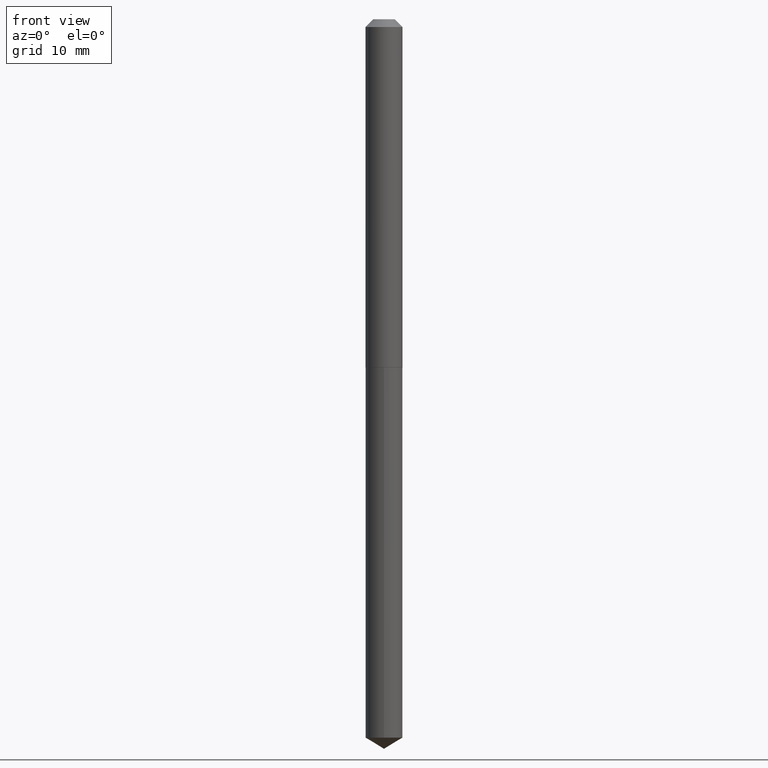
[diagram: clean part render]
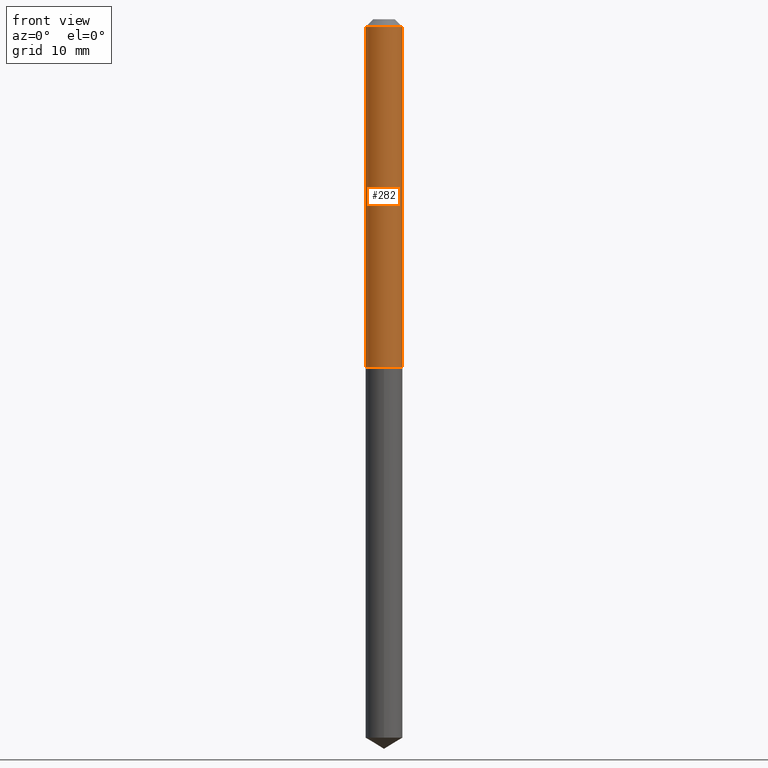
[diagram: same view with one face highlighted and labeled with its STEP entity id]
A machine part, front view. The second image highlights one B-rep face of the part: STEP entity #282.
In plain terms, the highlighted cylindrical surface (edge-blend (fillet) strip) has radius 1.8999 mm, axis along (-0, 0, 1).
Its self-contained STEP definition (entity closure, byte-faithful):
#2 = VECTOR ( 'NONE', #390, 39.37007874015748143 ) ;
#12 = ORIENTED_EDGE ( 'NONE', *, *, #45, .T. ) ;
#24 = EDGE_CURVE ( 'NONE', #134, #37, #386, .T. ) ;
#27 = CARTESIAN_POINT ( 'NONE',  ( 7.642090019328601786E-31, -1.091087918388490144E-16, -0.03125000000000020123 ) ) ;
#31 = CARTESIAN_POINT ( 'NONE',  ( 0.000000000000000000, 0.000000000000000000, 0.000000000000000000 ) ) ;
#37 = VERTEX_POINT ( 'NONE', #353 ) ;
#40 = EDGE_CURVE ( 'NONE', #209, #134, #263, .T. ) ;
#45 = EDGE_CURVE ( 'NONE', #344, #37, #171, .T. ) ;
#74 = ORIENTED_EDGE ( 'NONE', *, *, #125, .T. ) ;
#107 = DIRECTION ( 'NONE',  ( 1.000000000000000000, -6.982962677686271444E-15, 0.000000000000000000 ) ) ;
#113 = CARTESIAN_POINT ( 'NONE',  ( 3.445665547914856505E-29, -4.919497206429991117E-15, -1.408999999999999586 ) ) ;
#121 = DIRECTION ( 'NONE',  ( -2.445468806185136597E-29, 3.491481338843145583E-15, 1.000000000000000000 ) ) ;
#125 = EDGE_CURVE ( 'NONE', #209, #344, #347, .T. ) ;
#134 = VERTEX_POINT ( 'NONE', #323 ) ;
#171 = LINE ( 'NONE', #203, #2 ) ;
#183 = AXIS2_PLACEMENT_3D ( 'NONE', #27, #260, #388 ) ;
#195 = EDGE_LOOP ( 'NONE', ( #281, #74, #12, #310 ) ) ;
#203 = CARTESIAN_POINT ( 'NONE',  ( 0.07480000000000010252, -5.223256082909333921E-16, 3.647380228295364368E-30 ) ) ;
#209 = VERTEX_POINT ( 'NONE', #359 ) ;
#233 = CARTESIAN_POINT ( 'NONE',  ( -0.07480000000000010252, 5.314859663485556675E-16, -3.679363447510674285E-30 ) ) ;
#246 = DIRECTION ( 'NONE',  ( 1.000000000000000000, -6.982962677686265922E-15, 4.876176775795935232E-29 ) ) ;
#260 = DIRECTION ( 'NONE',  ( -2.445468806185136597E-29, 3.491481338843145583E-15, 1.000000000000000000 ) ) ;
#261 = AXIS2_PLACEMENT_3D ( 'NONE', #31, #121, #246 ) ;
#263 = LINE ( 'NONE', #233, #294 ) ;
#266 = CARTESIAN_POINT ( 'NONE',  ( 0.07480000000000018578, -5.441822814720925495E-15, -1.408999999999999586 ) ) ;
#281 = ORIENTED_EDGE ( 'NONE', *, *, #40, .F. ) ;
#282 = ADVANCED_FACE ( 'NONE', ( #303 ), #325, .T. ) ;
#294 = VECTOR ( 'NONE', #321, 39.37007874015748143 ) ;
#297 = DIRECTION ( 'NONE',  ( -2.445468806185136597E-29, 3.491481338843145583E-15, 1.000000000000000000 ) ) ;
#303 = FACE_OUTER_BOUND ( 'NONE', #195, .T. ) ;
#310 = ORIENTED_EDGE ( 'NONE', *, *, #24, .F. ) ;
#321 = DIRECTION ( 'NONE',  ( -2.445468806185136877E-29, 3.491481338843145188E-15, 1.000000000000000000 ) ) ;
#323 = CARTESIAN_POINT ( 'NONE',  ( -0.07480000000000000537, -1.982817032785863356E-15, -0.03125000000000020123 ) ) ;
#325 = CYLINDRICAL_SURFACE ( 'NONE', #261, 0.07480000000000010252 ) ;
#326 = AXIS2_PLACEMENT_3D ( 'NONE', #113, #297, #107 ) ;
#344 = VERTEX_POINT ( 'NONE', #266 ) ;
#347 = CIRCLE ( 'NONE', #326, 0.07480000000000018578 ) ;
#353 = CARTESIAN_POINT ( 'NONE',  ( 0.07480000000000000537, -6.314344001297818025E-16, -0.03125000000000020123 ) ) ;
#359 = CARTESIAN_POINT ( 'NONE',  ( -0.07480000000000018578, -4.388011240081434759E-15, -1.408999999999999586 ) ) ;
#386 = CIRCLE ( 'NONE', #183, 0.07480000000000000537 ) ;
#388 = DIRECTION ( 'NONE',  ( 1.000000000000000000, -6.982962677686266711E-15, 0.000000000000000000 ) ) ;
#390 = DIRECTION ( 'NONE',  ( -2.445468806185136877E-29, 3.491481338843145188E-15, 1.000000000000000000 ) ) ;